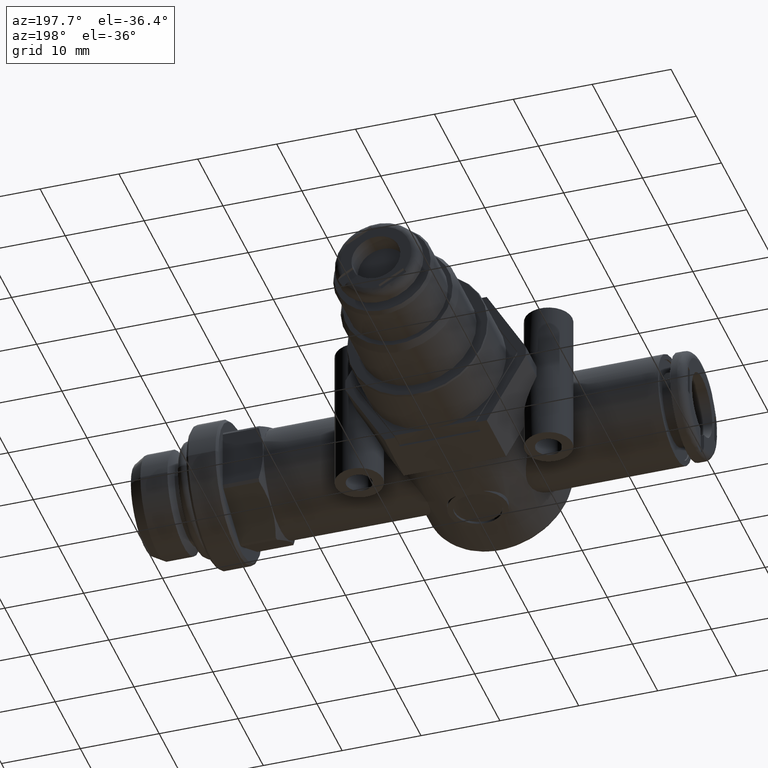
[diagram: clean part render]
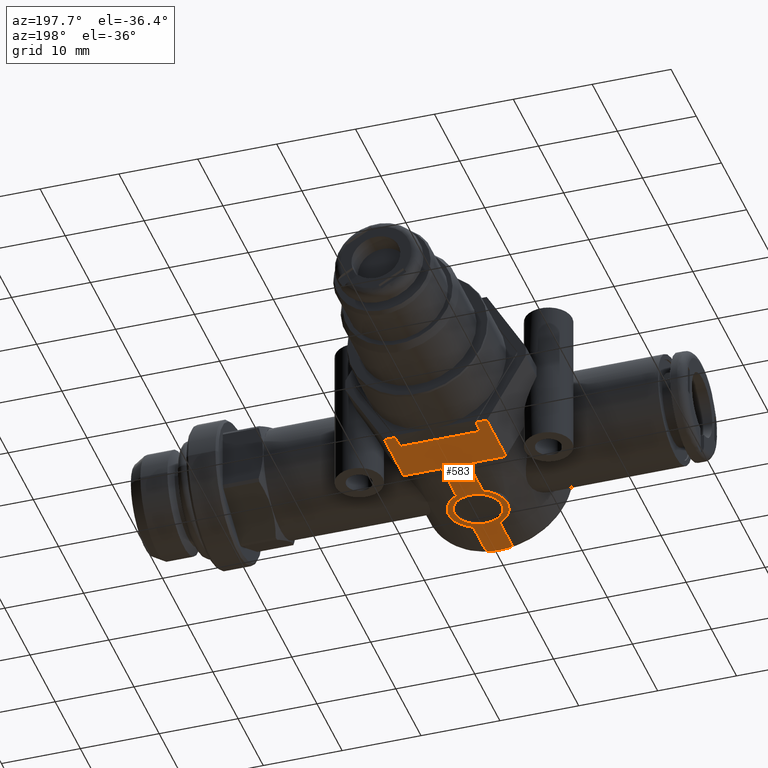
[diagram: same view with one face highlighted and labeled with its STEP entity id]
A machine part, auxiliary view. The second image highlights one B-rep face of the part: STEP entity #583.
In plain terms, the highlighted planar face has unit normal (0, 0, 1).
Its self-contained STEP definition (entity closure, byte-faithful):
#583 = ADVANCED_FACE( '', ( #1215, #1216 ), #1217, .F. );
#1215 = FACE_OUTER_BOUND( '', #1886, .T. );
#1216 = FACE_BOUND( '', #1887, .T. );
#1217 = PLANE( '', #1888 );
#1886 = EDGE_LOOP( '', ( #3107, #3108, #3109, #3110, #3111, #3112, #3113, #3114, #3115, #3116, #3117, #3118, #3119, #3120, #3121, #3122 ) );
#1887 = EDGE_LOOP( '', ( #3123 ) );
#1888 = AXIS2_PLACEMENT_3D( '', #3124, #3125, #3126 );
#3107 = ORIENTED_EDGE( '', *, *, #4005, .F. );
#3108 = ORIENTED_EDGE( '', *, *, #3983, .T. );
#3109 = ORIENTED_EDGE( '', *, *, #3728, .F. );
#3110 = ORIENTED_EDGE( '', *, *, #3688, .T. );
#3111 = ORIENTED_EDGE( '', *, *, #3806, .F. );
#3112 = ORIENTED_EDGE( '', *, *, #4006, .T. );
#3113 = ORIENTED_EDGE( '', *, *, #4007, .T. );
#3114 = ORIENTED_EDGE( '', *, *, #4008, .F. );
#3115 = ORIENTED_EDGE( '', *, *, #3954, .F. );
#3116 = ORIENTED_EDGE( '', *, *, #4009, .F. );
#3117 = ORIENTED_EDGE( '', *, *, #4010, .T. );
#3118 = ORIENTED_EDGE( '', *, *, #4011, .F. );
#3119 = ORIENTED_EDGE( '', *, *, #3926, .F. );
#3120 = ORIENTED_EDGE( '', *, *, #4012, .F. );
#3121 = ORIENTED_EDGE( '', *, *, #3746, .T. );
#3122 = ORIENTED_EDGE( '', *, *, #4013, .F. );
#3123 = ORIENTED_EDGE( '', *, *, #3596, .T. );
#3124 = CARTESIAN_POINT( '', ( 10.0000000000000, 10.0000000000000, -9.25000000000000 ) );
#3125 = DIRECTION( '', ( 0.000000000000000, -0.000000000000000, 1.00000000000000 ) );
#3126 = DIRECTION( '', ( 1.00000000000000, 0.000000000000000, -0.000000000000000 ) );
#3596 = EDGE_CURVE( '', #4190, #4190, #4191, .T. );
#3688 = EDGE_CURVE( '', #4343, #4347, #4349, .T. );
#3728 = EDGE_CURVE( '', #4343, #4416, #4417, .T. );
#3746 = EDGE_CURVE( '', #4445, #4443, #4446, .T. );
#3806 = EDGE_CURVE( '', #4536, #4347, #4538, .T. );
#3926 = EDGE_CURVE( '', #4707, #4708, #4710, .T. );
#3954 = EDGE_CURVE( '', #4743, #4744, #4746, .T. );
#3983 = EDGE_CURVE( '', #4780, #4416, #4782, .T. );
#4005 = EDGE_CURVE( '', #4780, #4812, #4813, .T. );
#4006 = EDGE_CURVE( '', #4536, #4814, #4815, .T. );
#4007 = EDGE_CURVE( '', #4814, #4816, #4817, .T. );
#4008 = EDGE_CURVE( '', #4744, #4816, #4818, .F. );
#4009 = EDGE_CURVE( '', #4819, #4743, #4820, .F. );
#4010 = EDGE_CURVE( '', #4819, #4821, #4822, .T. );
#4011 = EDGE_CURVE( '', #4708, #4821, #4823, .T. );
#4012 = EDGE_CURVE( '', #4445, #4707, #4824, .T. );
#4013 = EDGE_CURVE( '', #4812, #4443, #4825, .T. );
#4190 = VERTEX_POINT( '', #5046 );
#4191 = CIRCLE( '', #5047, 3.00000000000000 );
#4343 = VERTEX_POINT( '', #5240 );
#4347 = VERTEX_POINT( '', #5246 );
#4349 = LINE( '', #5249, #5250 );
#4416 = VERTEX_POINT( '', #5341 );
#4417 = LINE( '', #5342, #5343 );
#4443 = VERTEX_POINT( '', #5377 );
#4445 = VERTEX_POINT( '', #5380 );
#4446 = LINE( '', #5381, #5382 );
#4536 = VERTEX_POINT( '', #5533 );
#4538 = LINE( '', #5536, #5537 );
#4707 = VERTEX_POINT( '', #5924 );
#4708 = VERTEX_POINT( '', #5925 );
#4710 = CIRCLE( '', #5952, 3.75000000000000 );
#4743 = VERTEX_POINT( '', #5997 );
#4744 = VERTEX_POINT( '', #5998 );
#4746 = CIRCLE( '', #6025, 3.75000000000000 );
#4780 = VERTEX_POINT( '', #6069 );
#4782 = LINE( '', #6072, #6073 );
#4812 = VERTEX_POINT( '', #6269 );
#4813 = LINE( '', #6270, #6271 );
#4814 = VERTEX_POINT( '', #6272 );
#4815 = LINE( '', #6273, #6274 );
#4816 = VERTEX_POINT( '', #6275 );
#4817 = LINE( '', #6276, #6277 );
#4818 = LINE( '', #6278, #6279 );
#4819 = VERTEX_POINT( '', #6280 );
#4820 = LINE( '', #6281, #6282 );
#4821 = VERTEX_POINT( '', #6283 );
#4822 = B_SPLINE_CURVE_WITH_KNOTS( '', 3, ( #6284, #6285, #6286, #6287, #6288, #6289, #6290, #6291, #6292, #6293, #6294, #6295, #6296, #6297, #6298, #6299, #6300, #6301, #6302, #6303, #6304, #6305 ), .UNSPECIFIED., .F., .F., ( 4, 2, 2, 2, 2, 2, 2, 2, 2, 2, 4 ), ( 0.00548674398466226, 0.00560066561936967, 0.00571458725407708, 0.00594243052349190, 0.00639811706232154, 0.00730949013998081, 0.00822086321764009, 0.00867654975646972, 0.00890439302588454, 0.00901831466059195, 0.00913223629529936 ), .UNSPECIFIED. );
#4823 = LINE( '', #6306, #6307 );
#4824 = LINE( '', #6308, #6309 );
#4825 = LINE( '', #6310, #6311 );
#5046 = CARTESIAN_POINT( '', ( 3.00000000000000, 0.000000000000000, -9.25000000000000 ) );
#5047 = AXIS2_PLACEMENT_3D( '', #6703, #6704, #6705 );
#5240 = CARTESIAN_POINT( '', ( 5.10954988232819, 15.0000000000000, -9.25000000000000 ) );
#5246 = CARTESIAN_POINT( '', ( 5.10954988232819, 16.9000000000000, -9.25000000000000 ) );
#5249 = CARTESIAN_POINT( '', ( 5.10954988232819, 10.0000000000000, -9.25000000000000 ) );
#5250 = VECTOR( '', #6839, 1000.00000000000 );
#5341 = CARTESIAN_POINT( '', ( -5.10954988232819, 15.0000000000000, -9.25000000000000 ) );
#5342 = CARTESIAN_POINT( '', ( 10.0000000000000, 15.0000000000000, -9.25000000000000 ) );
#5343 = VECTOR( '', #6897, 1000.00000000000 );
#5377 = CARTESIAN_POINT( '', ( -6.49519052838329, 9.20000000000000, -9.25000000000000 ) );
#5380 = CARTESIAN_POINT( '', ( -1.67257286836777, 9.20000000000000, -9.25000000000000 ) );
#5381 = CARTESIAN_POINT( '', ( 6.49519052838329, 9.20000000000000, -9.25000000000000 ) );
#5382 = VECTOR( '', #6919, 1000.00000000000 );
#5533 = CARTESIAN_POINT( '', ( 6.49519052838329, 16.9000000000000, -9.25000000000000 ) );
#5536 = CARTESIAN_POINT( '', ( 6.49519052838329, 16.9000000000000, -9.25000000000000 ) );
#5537 = VECTOR( '', #6997, 1000.00000000000 );
#5924 = CARTESIAN_POINT( '', ( -1.67257286836778, 3.35633728936768, -9.25000000000000 ) );
#5925 = CARTESIAN_POINT( '', ( -1.67257286836778, -3.35633728936768, -9.25000000000000 ) );
#5952 = AXIS2_PLACEMENT_3D( '', #7142, #7143, #7144 );
#5997 = CARTESIAN_POINT( '', ( 1.67257286836778, -3.35633728936768, -9.25000000000000 ) );
#5998 = CARTESIAN_POINT( '', ( 1.67257286836778, 3.35633728936768, -9.25000000000000 ) );
#6025 = AXIS2_PLACEMENT_3D( '', #7162, #7163, #7164 );
#6069 = CARTESIAN_POINT( '', ( -5.10954988232819, 16.9000000000000, -9.25000000000000 ) );
#6072 = CARTESIAN_POINT( '', ( -5.10954988232819, 10.0000000000000, -9.25000000000000 ) );
#6073 = VECTOR( '', #7186, 1000.00000000000 );
#6269 = CARTESIAN_POINT( '', ( -6.49519052838329, 16.9000000000000, -9.25000000000000 ) );
#6270 = CARTESIAN_POINT( '', ( 6.49519052838329, 16.9000000000000, -9.25000000000000 ) );
#6271 = VECTOR( '', #7203, 1000.00000000000 );
#6272 = CARTESIAN_POINT( '', ( 6.49519052838329, 9.20000000000000, -9.25000000000000 ) );
#6273 = CARTESIAN_POINT( '', ( 6.49519052838329, 16.9000000000000, -9.25000000000000 ) );
#6274 = VECTOR( '', #7204, 1000.00000000000 );
#6275 = CARTESIAN_POINT( '', ( 1.67257286836778, 9.20000000000000, -9.25000000000000 ) );
#6276 = CARTESIAN_POINT( '', ( 6.49519052838329, 9.20000000000000, -9.25000000000000 ) );
#6277 = VECTOR( '', #7205, 1000.00000000000 );
#6278 = CARTESIAN_POINT( '', ( 1.67257286836778, -9.10000000000000, -9.25000000000000 ) );
#6279 = VECTOR( '', #7206, 1000.00000000000 );
#6280 = CARTESIAN_POINT( '', ( 1.67257286836778, -8.30000000000000, -9.25000000000000 ) );
#6281 = CARTESIAN_POINT( '', ( 1.67257286836778, -9.10000000000000, -9.25000000000000 ) );
#6282 = VECTOR( '', #7207, 1000.00000000000 );
#6283 = CARTESIAN_POINT( '', ( -1.67257286836870, -8.30000000000078, -9.25000000000000 ) );
#6284 = CARTESIAN_POINT( '', ( 1.67257286837443, -8.29999999999996, -9.25000000000000 ) );
#6285 = CARTESIAN_POINT( '', ( 1.67257286837444, -8.33806728583355, -9.25000000000000 ) );
#6286 = CARTESIAN_POINT( '', ( 1.65587314777277, -8.37549144049542, -9.25000000000000 ) );
#6287 = CARTESIAN_POINT( '', ( 1.60943639738337, -8.43601463646205, -9.25000000000000 ) );
#6288 = CARTESIAN_POINT( '', ( 1.57983493554609, -8.46129566916637, -9.25000000000000 ) );
#6289 = CARTESIAN_POINT( '', ( 1.48650135326004, -8.52683194244745, -9.25000000000000 ) );
#6290 = CARTESIAN_POINT( '', ( 1.41625161918915, -8.55876215565025, -9.25000000000000 ) );
#6291 = CARTESIAN_POINT( '', ( 1.20450962645265, -8.63859459409826, -9.25000000000000 ) );
#6292 = CARTESIAN_POINT( '', ( 1.05599758131416, -8.67191149100260, -9.25000000000000 ) );
#6293 = CARTESIAN_POINT( '', ( 0.608813987277906, -8.74816739329717, -9.25000000000001 ) );
#6294 = CARTESIAN_POINT( '', ( 0.307768663372542, -8.76613227286528, -9.25000000000000 ) );
#6295 = CARTESIAN_POINT( '', ( -0.297475030797506, -8.76660164108544, -9.25000000000000 ) );
#6296 = CARTESIAN_POINT( '', ( -0.603875096460102, -8.74870138543589, -9.25000000000000 ) );
#6297 = CARTESIAN_POINT( '', ( -1.05303643696222, -8.67256776467147, -9.25000000000000 ) );
#6298 = CARTESIAN_POINT( '', ( -1.20095642052042, -8.63971541027620, -9.25000000000000 ) );
#6299 = CARTESIAN_POINT( '', ( -1.41531726153773, -8.55922178759227, -9.25000000000000 ) );
#6300 = CARTESIAN_POINT( '', ( -1.48562053223312, -8.52739280964452, -9.25000000000000 ) );
#6301 = CARTESIAN_POINT( '', ( -1.57985642235266, -8.46130920047564, -9.25000000000000 ) );
#6302 = CARTESIAN_POINT( '', ( -1.60935039700309, -8.43612464844256, -9.25000000000000 ) );
#6303 = CARTESIAN_POINT( '', ( -1.65594873919592, -8.37539499454185, -9.25000000000000 ) );
#6304 = CARTESIAN_POINT( '', ( -1.67257286836781, -8.33824448453661, -9.25000000000000 ) );
#6305 = CARTESIAN_POINT( '', ( -1.67257286836803, -8.30000000000083, -9.25000000000000 ) );
#6306 = CARTESIAN_POINT( '', ( -1.67257286836778, -9.10000000000000, -9.25000000000000 ) );
#6307 = VECTOR( '', #7208, 1000.00000000000 );
#6308 = CARTESIAN_POINT( '', ( -1.67257286836778, -9.10000000000000, -9.25000000000000 ) );
#6309 = VECTOR( '', #7209, 1000.00000000000 );
#6310 = CARTESIAN_POINT( '', ( -6.49519052838329, 16.9000000000000, -9.25000000000000 ) );
#6311 = VECTOR( '', #7210, 1000.00000000000 );
#6703 = CARTESIAN_POINT( '', ( 0.000000000000000, 0.000000000000000, -9.25000000000000 ) );
#6704 = DIRECTION( '', ( 0.000000000000000, -0.000000000000000, 1.00000000000000 ) );
#6705 = DIRECTION( '', ( 1.00000000000000, 0.000000000000000, 0.000000000000000 ) );
#6839 = DIRECTION( '', ( 0.000000000000000, 1.00000000000000, 0.000000000000000 ) );
#6897 = DIRECTION( '', ( -1.00000000000000, 0.000000000000000, 0.000000000000000 ) );
#6919 = DIRECTION( '', ( -1.00000000000000, 0.000000000000000, -2.67078150886606E-016 ) );
#6997 = DIRECTION( '', ( -1.00000000000000, 0.000000000000000, -2.67078150886606E-016 ) );
#7142 = CARTESIAN_POINT( '', ( 0.000000000000000, 0.000000000000000, -9.25000000000000 ) );
#7143 = DIRECTION( '', ( 0.000000000000000, 0.000000000000000, 1.00000000000000 ) );
#7144 = DIRECTION( '', ( 1.00000000000000, 0.000000000000000, 0.000000000000000 ) );
#7162 = CARTESIAN_POINT( '', ( 0.000000000000000, 0.000000000000000, -9.25000000000000 ) );
#7163 = DIRECTION( '', ( 0.000000000000000, 0.000000000000000, 1.00000000000000 ) );
#7164 = DIRECTION( '', ( 1.00000000000000, 0.000000000000000, 0.000000000000000 ) );
#7186 = DIRECTION( '', ( 0.000000000000000, -1.00000000000000, 0.000000000000000 ) );
#7203 = DIRECTION( '', ( -1.00000000000000, 0.000000000000000, -2.67078150886606E-016 ) );
#7204 = DIRECTION( '', ( -0.000000000000000, -1.00000000000000, -0.000000000000000 ) );
#7205 = DIRECTION( '', ( -1.00000000000000, 0.000000000000000, -2.67078150886606E-016 ) );
#7206 = DIRECTION( '', ( -0.000000000000000, -1.00000000000000, -0.000000000000000 ) );
#7207 = DIRECTION( '', ( -0.000000000000000, -1.00000000000000, -0.000000000000000 ) );
#7208 = DIRECTION( '', ( -0.000000000000000, -1.00000000000000, -0.000000000000000 ) );
#7209 = DIRECTION( '', ( -0.000000000000000, -1.00000000000000, -0.000000000000000 ) );
#7210 = DIRECTION( '', ( -0.000000000000000, -1.00000000000000, -0.000000000000000 ) );